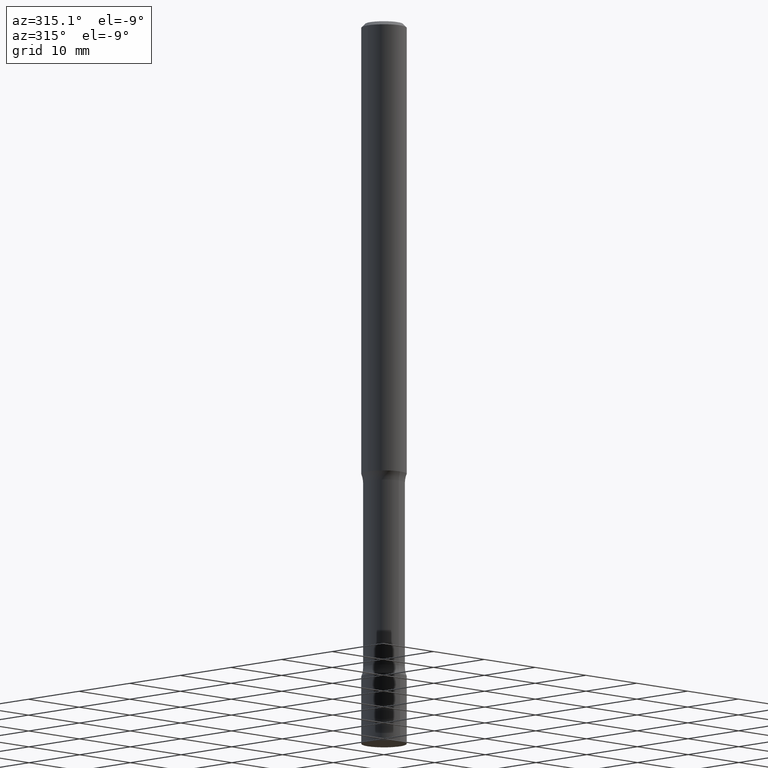
[diagram: clean part render]
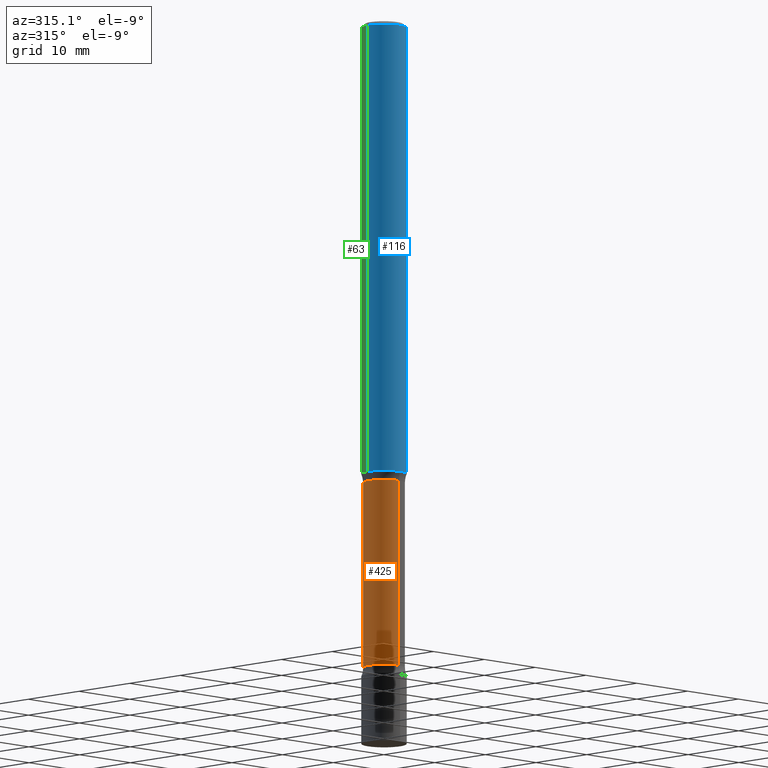
[diagram: same view with three faces highlighted in distinct colors, each labeled with its STEP entity id]
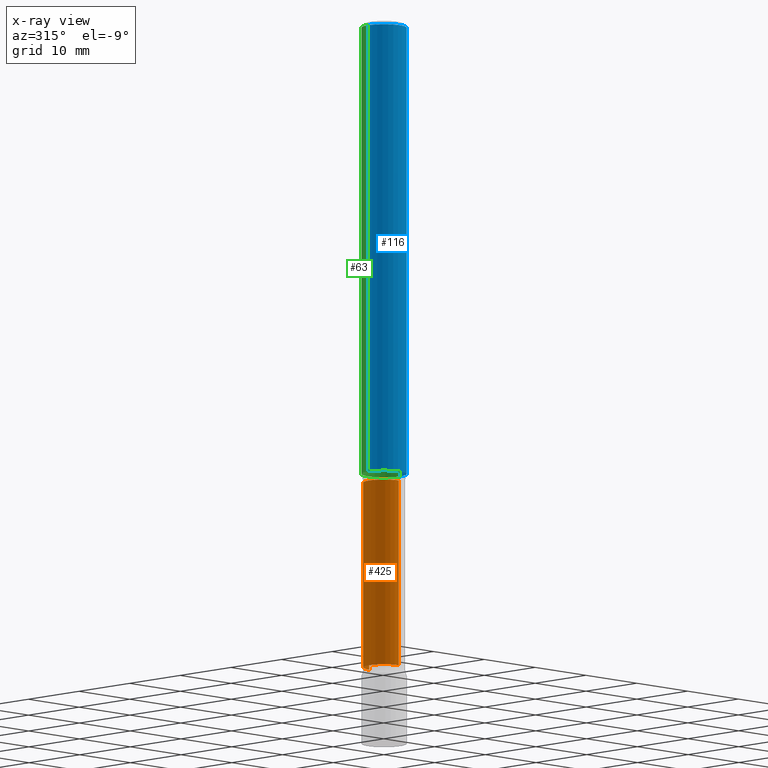
[diagram: x-ray of the same camera — body ghosted, the three highlighted faces saturated]
A machine part, auxiliary view with three faces highlighted in distinct colors.
The next image is the same camera in x-ray (body ghosted, the three faces saturated) — at least one of them is partly hidden behind the body in this view.
Their STEP definitions:

[orange] entity #425 — the highlighted cylindrical surface (edge-blend (fillet) strip) has radius 2.921 mm, axis along (0, -0, -1).
#2 = CIRCLE ( 'NONE', #307, 0.1150000000000002548 ) ;
#4 = DIRECTION ( 'NONE',  ( 6.982962677686265922E-15, 1.000000000000000000, -4.751039988981320237E-15 ) ) ;
#15 = LINE ( 'NONE', #367, #177 ) ;
#39 = AXIS2_PLACEMENT_3D ( 'NONE', #220, #391, #446 ) ;
#92 = CARTESIAN_POINT ( 'NONE',  ( 8.030407079339822620E-16, 0.1149999999999910261, -2.548989794855663682 ) ) ;
#107 = AXIS2_PLACEMENT_3D ( 'NONE', #470, #111, #4 ) ;
#111 = DIRECTION ( 'NONE',  ( 2.666918422413057780E-29, -3.174352884275353825E-15, -1.000000000000000000 ) ) ;
#119 = ORIENTED_EDGE ( 'NONE', *, *, #433, .F. ) ;
#129 = ORIENTED_EDGE ( 'NONE', *, *, #329, .T. ) ;
#144 = FACE_OUTER_BOUND ( 'NONE', #303, .T. ) ;
#177 = VECTOR ( 'NONE', #288, 39.37007874015748143 ) ;
#182 = CARTESIAN_POINT ( 'NONE',  ( -8.232597597324957230E-16, -0.1150000000000126060, -3.576010205144335874 ) ) ;
#198 = VERTEX_POINT ( 'NONE', #182 ) ;
#218 = ORIENTED_EDGE ( 'NONE', *, *, #377, .F. ) ;
#220 = CARTESIAN_POINT ( 'NONE',  ( 8.735351864089074202E-29, -1.249942023497999275E-14, -3.576010205144336318 ) ) ;
#223 = ORIENTED_EDGE ( 'NONE', *, *, #351, .T. ) ;
#226 = VERTEX_POINT ( 'NONE', #92 ) ;
#231 = CARTESIAN_POINT ( 'NONE',  ( 5.996372211695994382E-29, -9.239295033370484915E-15, -2.548989794855663238 ) ) ;
#260 = VERTEX_POINT ( 'NONE', #291 ) ;
#288 = DIRECTION ( 'NONE',  ( 2.666918422413057780E-29, -3.174352884275353825E-15, -1.000000000000000000 ) ) ;
#291 = CARTESIAN_POINT ( 'NONE',  ( -8.232597597325262914E-16, -0.1150000000000094835, -2.548989794855662794 ) ) ;
#303 = EDGE_LOOP ( 'NONE', ( #119, #223, #129, #218 ) ) ;
#307 = AXIS2_PLACEMENT_3D ( 'NONE', #231, #310, #406 ) ;
#308 = CYLINDRICAL_SURFACE ( 'NONE', #107, 0.1150000000000001715 ) ;
#309 = VERTEX_POINT ( 'NONE', #410 ) ;
#310 = DIRECTION ( 'NONE',  ( 2.666918422413057780E-29, -3.174352884275353825E-15, -1.000000000000000000 ) ) ;
#329 = EDGE_CURVE ( 'NONE', #226, #309, #432, .T. ) ;
#351 = EDGE_CURVE ( 'NONE', #260, #226, #2, .T. ) ;
#367 = CARTESIAN_POINT ( 'NONE',  ( -7.889572697436285910E-16, -0.1150000000000140216, -3.999999999999999556 ) ) ;
#377 = EDGE_CURVE ( 'NONE', #198, #309, #443, .T. ) ;
#391 = DIRECTION ( 'NONE',  ( 2.666918422413057780E-29, -3.174352884275353825E-15, -1.000000000000000000 ) ) ;
#404 = VECTOR ( 'NONE', #427, 39.37007874015748143 ) ;
#406 = DIRECTION ( 'NONE',  ( 6.982962677686265133E-15, 1.000000000000000000, -4.751039988981317081E-15 ) ) ;
#410 = CARTESIAN_POINT ( 'NONE',  ( 8.030407079340086889E-16, 0.1149999999999876121, -3.576010205144337206 ) ) ;
#425 = ADVANCED_FACE ( 'NONE', ( #144 ), #308, .T. ) ;
#427 = DIRECTION ( 'NONE',  ( 2.666918422413057780E-29, -3.174352884275353825E-15, -1.000000000000000000 ) ) ;
#432 = LINE ( 'NONE', #441, #404 ) ;
#433 = EDGE_CURVE ( 'NONE', #260, #198, #15, .T. ) ;
#441 = CARTESIAN_POINT ( 'NONE',  ( 8.030407079340205218E-16, 0.1149999999999863215, -4.000000000000000888 ) ) ;
#443 = CIRCLE ( 'NONE', #39, 0.1150000000000001021 ) ;
#446 = DIRECTION ( 'NONE',  ( 6.982962677686265922E-15, 1.000000000000000000, -4.751039988981323392E-15 ) ) ;
#470 = CARTESIAN_POINT ( 'NONE',  ( 9.866098058904775575E-29, -1.384531346318338381E-14, -4.000000000000000000 ) ) ;

[blue] entity #116 — the highlighted cylindrical surface (edge-blend (fillet) strip) has radius 3.175 mm, axis along (-0, 0, 1).
#9 = CIRCLE ( 'NONE', #282, 0.1249999999999996947 ) ;
#41 = VERTEX_POINT ( 'NONE', #371 ) ;
#45 = AXIS2_PLACEMENT_3D ( 'NONE', #67, #296, #254 ) ;
#67 = CARTESIAN_POINT ( 'NONE',  ( 6.113672015462840371E-29, -8.728703347107863365E-15, -2.499999999999999556 ) ) ;
#78 = VERTEX_POINT ( 'NONE', #118 ) ;
#85 = CARTESIAN_POINT ( 'NONE',  ( 0.1249999999999998473, -8.728703347107822541E-16, 6.095220969744912034E-30 ) ) ;
#90 = AXIS2_PLACEMENT_3D ( 'NONE', #114, #415, #164 ) ;
#114 = CARTESIAN_POINT ( 'NONE',  ( 0.000000000000000000, 0.000000000000000000, 0.000000000000000000 ) ) ;
#116 = ADVANCED_FACE ( 'NONE', ( #304 ), #146, .T. ) ;
#118 = CARTESIAN_POINT ( 'NONE',  ( -0.1250000000000000278, -3.511088067242232183E-15, -2.499999999999999556 ) ) ;
#120 = EDGE_CURVE ( 'NONE', #78, #484, #211, .T. ) ;
#146 = CYLINDRICAL_SURFACE ( 'NONE', #90, 0.1249999999999998473 ) ;
#154 = EDGE_CURVE ( 'NONE', #78, #359, #176, .T. ) ;
#164 = DIRECTION ( 'NONE',  ( 1.000000000000000000, -6.982962677686266711E-15, 4.876176775795935793E-29 ) ) ;
#176 = CIRCLE ( 'NONE', #45, 0.1250000000000000000 ) ;
#199 = EDGE_CURVE ( 'NONE', #484, #41, #9, .T. ) ;
#211 = LINE ( 'NONE', #328, #442 ) ;
#212 = CARTESIAN_POINT ( 'NONE',  ( 4.890937612370273159E-31, -6.982962677686291609E-17, -0.02000000000000000042 ) ) ;
#229 = VECTOR ( 'NONE', #262, 39.37007874015748143 ) ;
#232 = ORIENTED_EDGE ( 'NONE', *, *, #199, .F. ) ;
#244 = CARTESIAN_POINT ( 'NONE',  ( -0.1249999999999996947, 8.030407079339181671E-16, -0.02000000000000000042 ) ) ;
#254 = DIRECTION ( 'NONE',  ( 1.000000000000000000, -6.982962677686270655E-15, 0.000000000000000000 ) ) ;
#262 = DIRECTION ( 'NONE',  ( -2.445468806185136877E-29, 3.491481338843145188E-15, 1.000000000000000000 ) ) ;
#272 = LINE ( 'NONE', #85, #229 ) ;
#276 = EDGE_LOOP ( 'NONE', ( #399, #396, #411, #232 ) ) ;
#279 = DIRECTION ( 'NONE',  ( -2.445468806185136877E-29, 3.491481338843145188E-15, 1.000000000000000000 ) ) ;
#282 = AXIS2_PLACEMENT_3D ( 'NONE', #212, #426, #420 ) ;
#296 = DIRECTION ( 'NONE',  ( -2.445468806185136597E-29, 3.491481338843145583E-15, 1.000000000000000000 ) ) ;
#304 = FACE_OUTER_BOUND ( 'NONE', #276, .T. ) ;
#326 = EDGE_CURVE ( 'NONE', #359, #41, #272, .T. ) ;
#328 = CARTESIAN_POINT ( 'NONE',  ( -0.1249999999999998473, 8.881784197001241477E-16, -6.148668862818624520E-30 ) ) ;
#359 = VERTEX_POINT ( 'NONE', #505 ) ;
#371 = CARTESIAN_POINT ( 'NONE',  ( 0.1249999999999996947, -9.273918764983021797E-16, -0.02000000000000000042 ) ) ;
#396 = ORIENTED_EDGE ( 'NONE', *, *, #154, .T. ) ;
#399 = ORIENTED_EDGE ( 'NONE', *, *, #120, .F. ) ;
#411 = ORIENTED_EDGE ( 'NONE', *, *, #326, .T. ) ;
#415 = DIRECTION ( 'NONE',  ( -2.445468806185136597E-29, 3.491481338843145583E-15, 1.000000000000000000 ) ) ;
#420 = DIRECTION ( 'NONE',  ( 1.000000000000000000, -6.982962677686266711E-15, 0.000000000000000000 ) ) ;
#426 = DIRECTION ( 'NONE',  ( -2.445468806185136597E-29, 3.491481338843145583E-15, 1.000000000000000000 ) ) ;
#442 = VECTOR ( 'NONE', #279, 39.37007874015748143 ) ;
#484 = VERTEX_POINT ( 'NONE', #244 ) ;
#505 = CARTESIAN_POINT ( 'NONE',  ( 0.1250000000000000000, -9.601573681818646704E-15, -2.499999999999999556 ) ) ;

[green] entity #63 — the highlighted cylindrical surface (edge-blend (fillet) strip) has radius 3.175 mm, axis along (-0, 0, 1).
#24 = FACE_OUTER_BOUND ( 'NONE', #128, .T. ) ;
#34 = DIRECTION ( 'NONE',  ( 1.000000000000000000, -6.982962677686266711E-15, 0.000000000000000000 ) ) ;
#41 = VERTEX_POINT ( 'NONE', #371 ) ;
#63 = ADVANCED_FACE ( 'NONE', ( #24 ), #298, .T. ) ;
#66 = ORIENTED_EDGE ( 'NONE', *, *, #120, .T. ) ;
#71 = ORIENTED_EDGE ( 'NONE', *, *, #255, .T. ) ;
#78 = VERTEX_POINT ( 'NONE', #118 ) ;
#85 = CARTESIAN_POINT ( 'NONE',  ( 0.1249999999999998473, -8.728703347107822541E-16, 6.095220969744912034E-30 ) ) ;
#118 = CARTESIAN_POINT ( 'NONE',  ( -0.1250000000000000278, -3.511088067242232183E-15, -2.499999999999999556 ) ) ;
#120 = EDGE_CURVE ( 'NONE', #78, #484, #211, .T. ) ;
#121 = ORIENTED_EDGE ( 'NONE', *, *, #326, .F. ) ;
#126 = CIRCLE ( 'NONE', #414, 0.1249999999999996947 ) ;
#128 = EDGE_LOOP ( 'NONE', ( #71, #66, #233, #121 ) ) ;
#143 = AXIS2_PLACEMENT_3D ( 'NONE', #174, #243, #494 ) ;
#172 = DIRECTION ( 'NONE',  ( -2.445468806185136597E-29, 3.491481338843145583E-15, 1.000000000000000000 ) ) ;
#174 = CARTESIAN_POINT ( 'NONE',  ( 6.113672015462840371E-29, -8.728703347107863365E-15, -2.499999999999999556 ) ) ;
#211 = LINE ( 'NONE', #328, #442 ) ;
#229 = VECTOR ( 'NONE', #262, 39.37007874015748143 ) ;
#233 = ORIENTED_EDGE ( 'NONE', *, *, #407, .F. ) ;
#243 = DIRECTION ( 'NONE',  ( -2.445468806185136597E-29, 3.491481338843145583E-15, 1.000000000000000000 ) ) ;
#244 = CARTESIAN_POINT ( 'NONE',  ( -0.1249999999999996947, 8.030407079339181671E-16, -0.02000000000000000042 ) ) ;
#255 = EDGE_CURVE ( 'NONE', #359, #78, #306, .T. ) ;
#262 = DIRECTION ( 'NONE',  ( -2.445468806185136877E-29, 3.491481338843145188E-15, 1.000000000000000000 ) ) ;
#272 = LINE ( 'NONE', #85, #229 ) ;
#279 = DIRECTION ( 'NONE',  ( -2.445468806185136877E-29, 3.491481338843145188E-15, 1.000000000000000000 ) ) ;
#292 = AXIS2_PLACEMENT_3D ( 'NONE', #462, #172, #294 ) ;
#294 = DIRECTION ( 'NONE',  ( 1.000000000000000000, -6.982962677686266711E-15, 4.876176775795935793E-29 ) ) ;
#298 = CYLINDRICAL_SURFACE ( 'NONE', #292, 0.1249999999999998473 ) ;
#306 = CIRCLE ( 'NONE', #143, 0.1250000000000000000 ) ;
#326 = EDGE_CURVE ( 'NONE', #359, #41, #272, .T. ) ;
#328 = CARTESIAN_POINT ( 'NONE',  ( -0.1249999999999998473, 8.881784197001241477E-16, -6.148668862818624520E-30 ) ) ;
#359 = VERTEX_POINT ( 'NONE', #505 ) ;
#371 = CARTESIAN_POINT ( 'NONE',  ( 0.1249999999999996947, -9.273918764983021797E-16, -0.02000000000000000042 ) ) ;
#388 = CARTESIAN_POINT ( 'NONE',  ( 4.890937612370273159E-31, -6.982962677686291609E-17, -0.02000000000000000042 ) ) ;
#400 = DIRECTION ( 'NONE',  ( -2.445468806185136597E-29, 3.491481338843145583E-15, 1.000000000000000000 ) ) ;
#407 = EDGE_CURVE ( 'NONE', #41, #484, #126, .T. ) ;
#414 = AXIS2_PLACEMENT_3D ( 'NONE', #388, #400, #34 ) ;
#442 = VECTOR ( 'NONE', #279, 39.37007874015748143 ) ;
#462 = CARTESIAN_POINT ( 'NONE',  ( 0.000000000000000000, 0.000000000000000000, 0.000000000000000000 ) ) ;
#484 = VERTEX_POINT ( 'NONE', #244 ) ;
#494 = DIRECTION ( 'NONE',  ( 1.000000000000000000, -6.982962677686270655E-15, 0.000000000000000000 ) ) ;
#505 = CARTESIAN_POINT ( 'NONE',  ( 0.1250000000000000000, -9.601573681818646704E-15, -2.499999999999999556 ) ) ;